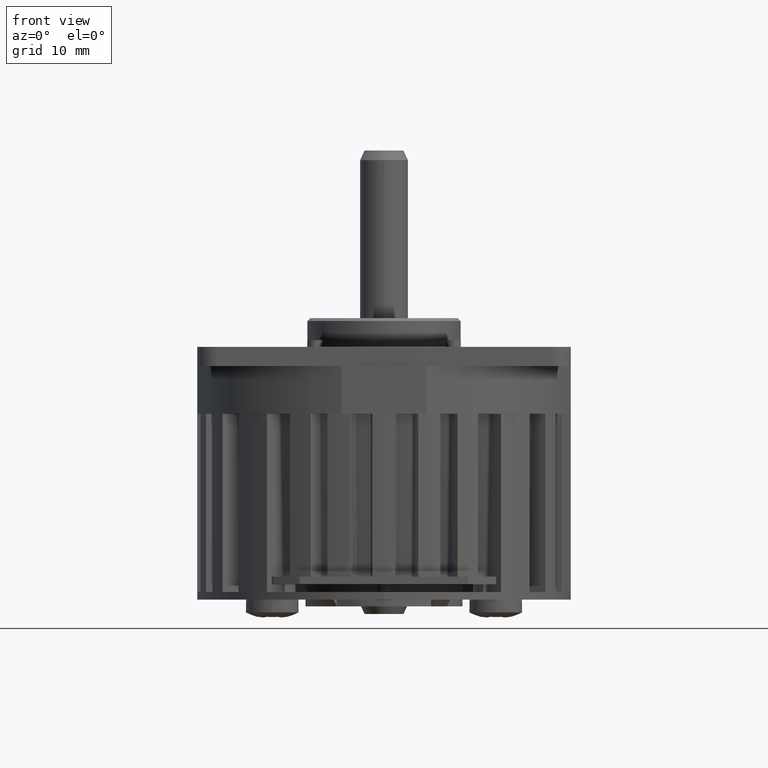
[diagram: clean part render]
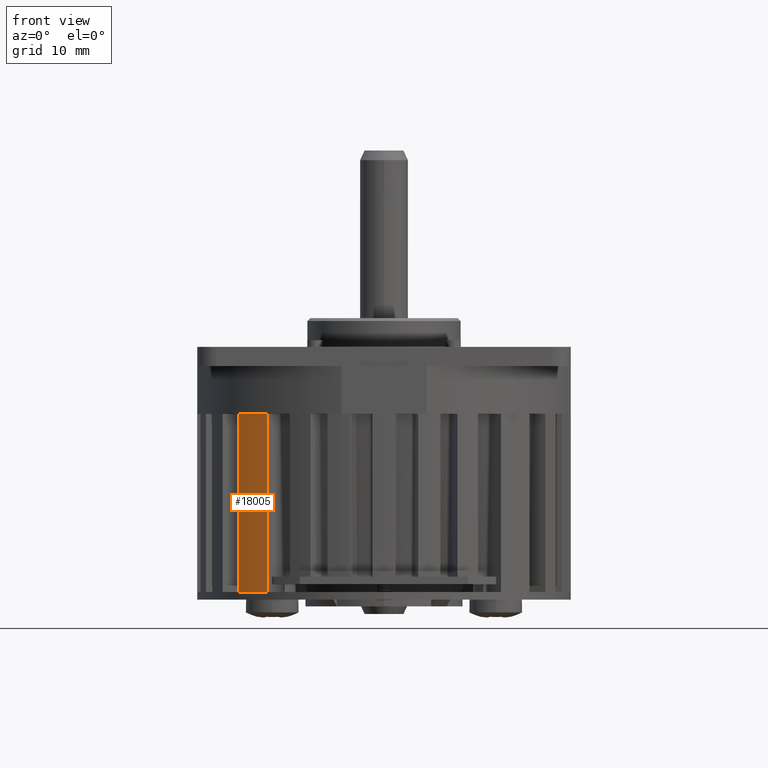
[diagram: same view with one face highlighted and labeled with its STEP entity id]
A machine part, front view. The second image highlights one B-rep face of the part: STEP entity #18005.
In plain terms, the highlighted cylindrical surface (partial cylindrical patch) has radius 19.5 mm, axis along (0, 0, -1).
Its self-contained STEP definition (entity closure, byte-faithful):
#10366=CARTESIAN_POINT('',(0.E0,0.E0,-2.36E1));
#10367=DIRECTION('',(0.E0,0.E0,-1.E0));
#10368=DIRECTION('',(-6.268444794904E-1,-7.791444015921E-1,0.E0));
#10369=AXIS2_PLACEMENT_3D('',#10366,#10367,#10368);
#10449=DIRECTION('',(0.E0,0.E0,-1.E0));
#10450=VECTOR('',#10449,1.86E1);
#10451=CARTESIAN_POINT('',(-1.519331583105E1,-1.222346735006E1,-5.E0));
#10452=LINE('',#10451,#10450);
#10453=DIRECTION('',(0.E0,0.E0,1.E0));
#10454=VECTOR('',#10453,1.86E1);
#10455=CARTESIAN_POINT('',(-1.222346735006E1,-1.519331583105E1,-2.36E1));
#10456=LINE('',#10455,#10454);
#10516=CARTESIAN_POINT('',(0.E0,0.E0,-5.E0));
#10517=DIRECTION('',(0.E0,0.E0,1.E0));
#10518=DIRECTION('',(-7.791444015921E-1,-6.268444794904E-1,0.E0));
#10519=AXIS2_PLACEMENT_3D('',#10516,#10517,#10518);
#16718=CARTESIAN_POINT('',(-1.519331583105E1,-1.222346735006E1,-5.E0));
#16719=VERTEX_POINT('',#16718);
#16720=CARTESIAN_POINT('',(-1.222346735006E1,-1.519331583105E1,-5.E0));
#16721=VERTEX_POINT('',#16720);
#17143=CARTESIAN_POINT('',(-1.222346735006E1,-1.519331583105E1,-2.36E1));
#17144=VERTEX_POINT('',#17143);
#17147=CARTESIAN_POINT('',(-1.519331583105E1,-1.222346735006E1,-2.36E1));
#17148=VERTEX_POINT('',#17147);
#17992=CARTESIAN_POINT('',(0.E0,0.E0,-5.E0));
#17993=DIRECTION('',(0.E0,0.E0,-1.E0));
#17994=DIRECTION('',(-1.E0,0.E0,0.E0));
#17995=AXIS2_PLACEMENT_3D('',#17992,#17993,#17994);
#17996=CYLINDRICAL_SURFACE('',#17995,1.95E1);
#17997=ORIENTED_EDGE('',*,*,#17896,.T.);
#17999=ORIENTED_EDGE('',*,*,#17998,.F.);
#18001=ORIENTED_EDGE('',*,*,#18000,.T.);
#18002=ORIENTED_EDGE('',*,*,#17984,.F.);
#18003=EDGE_LOOP('',(#17997,#17999,#18001,#18002));
#18004=FACE_OUTER_BOUND('',#18003,.F.);
#18005=ADVANCED_FACE('',(#18004),#17996,.T.);
#10370=CIRCLE('',#10369,1.95E1);
#10520=CIRCLE('',#10519,1.95E1);
#17896=EDGE_CURVE('',#17144,#17148,#10370,.T.);
#17984=EDGE_CURVE('',#17144,#16721,#10456,.T.);
#17998=EDGE_CURVE('',#16719,#17148,#10452,.T.);
#18000=EDGE_CURVE('',#16719,#16721,#10520,.T.);